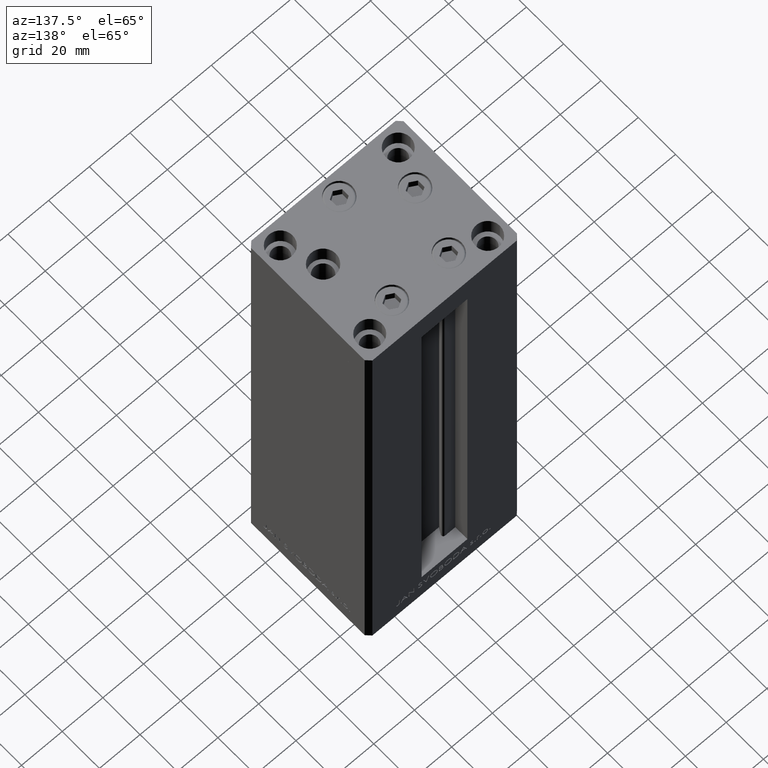
[diagram: clean part render]
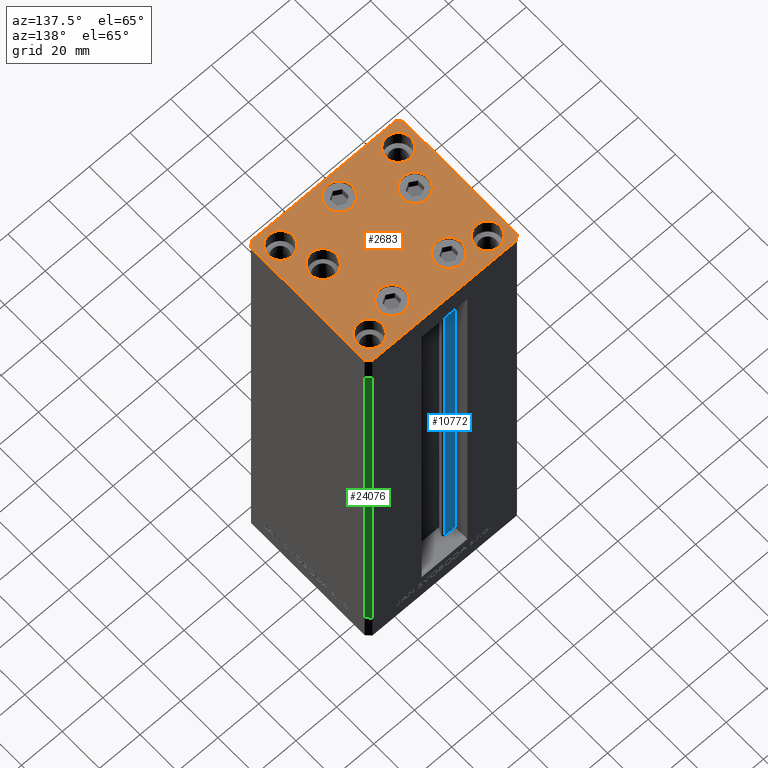
[diagram: same view with three faces highlighted in distinct colors, each labeled with its STEP entity id]
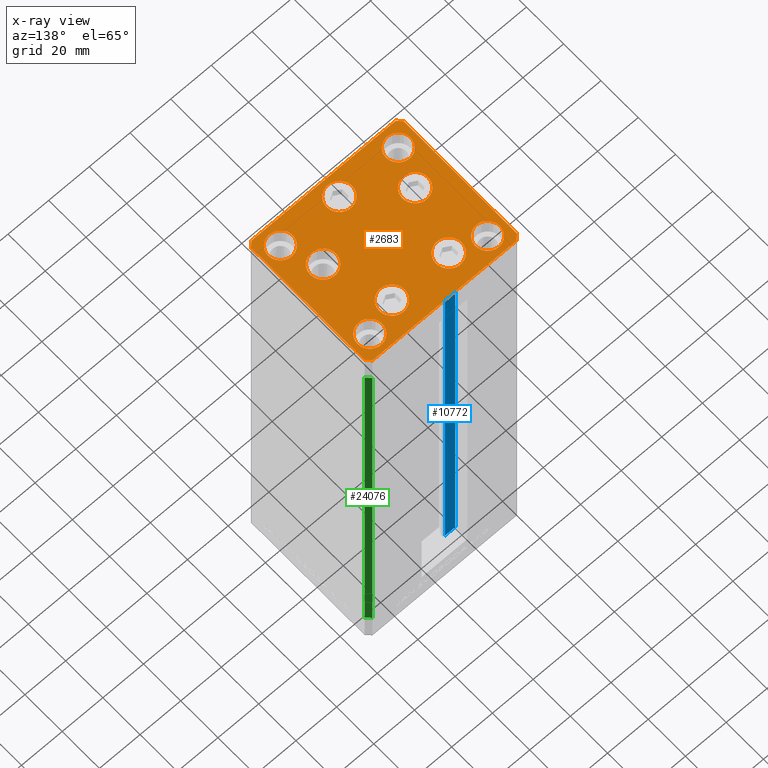
[diagram: x-ray of the same camera — body ghosted, the three highlighted faces saturated]
A machine part, auxiliary view with three faces highlighted in distinct colors.
The next image is the same camera in x-ray (body ghosted, the three faces saturated) — at least one of them is partly hidden behind the body in this view.
Their STEP definitions:

[orange] entity #2683 — the highlighted planar face has unit normal (0, 0, 1).
#607 = DIRECTION ( 'NONE',  ( -1.000000000000000000, -1.954618001100629052E-16, 0.000000000000000000 ) ) ;
#750 = ORIENTED_EDGE ( 'NONE', *, *, #7048, .F. ) ;
#1322 = AXIS2_PLACEMENT_3D ( 'NONE', #6666, #2460, #29663 ) ;
#1411 = LINE ( 'NONE', #5377, #22846 ) ;
#1562 = LINE ( 'NONE', #31986, #4881 ) ;
#1857 = EDGE_CURVE ( 'NONE', #1968, #15052, #44227, .T. ) ;
#1968 = VERTEX_POINT ( 'NONE', #22663 ) ;
#2145 = CARTESIAN_POINT ( 'NONE',  ( 37.49999999999992184, 30.50000000000001066, 0.000000000000000000 ) ) ;
#2246 = AXIS2_PLACEMENT_3D ( 'NONE', #43016, #5640, #2413 ) ;
#2306 = ORIENTED_EDGE ( 'NONE', *, *, #32902, .T. ) ;
#2413 = DIRECTION ( 'NONE',  ( 1.000000000000000000, 0.000000000000000000, 0.000000000000000000 ) ) ;
#2460 = DIRECTION ( 'NONE',  ( -0.000000000000000000, 0.000000000000000000, 1.000000000000000000 ) ) ;
#2468 = CARTESIAN_POINT ( 'NONE',  ( -35.49999999999998579, -32.50000000000001421, 0.000000000000000000 ) ) ;
#2683 = ADVANCED_FACE ( 'NONE', ( #29914, #29429, #33139, #37114, #40576, #41061, #18295, #37358, #18535, #10866 ), #45010, .T. ) ;
#3145 = EDGE_LOOP ( 'NONE', ( #5150, #37892 ) ) ;
#3206 = AXIS2_PLACEMENT_3D ( 'NONE', #9161, #46061, #16125 ) ;
#3431 = EDGE_CURVE ( 'NONE', #40720, #43264, #17968, .T. ) ;
#3492 = DIRECTION ( 'NONE',  ( 0.000000000000000000, -0.000000000000000000, -1.000000000000000000 ) ) ;
#3612 = CIRCLE ( 'NONE', #8401, 6.250000000000001776 ) ;
#3878 = VERTEX_POINT ( 'NONE', #35546 ) ;
#4555 = DIRECTION ( 'NONE',  ( 1.000000000000000000, 0.000000000000000000, 0.000000000000000000 ) ) ;
#4750 = CARTESIAN_POINT ( 'NONE',  ( -23.00000000000001421, -23.99999999999999289, 0.000000000000000000 ) ) ;
#4817 = CARTESIAN_POINT ( 'NONE',  ( 35.49999999999992184, 32.50000000000000711, 0.000000000000000000 ) ) ;
#4821 = VERTEX_POINT ( 'NONE', #11078 ) ;
#4881 = VECTOR ( 'NONE', #20866, 1000.000000000000000 ) ;
#4950 = AXIS2_PLACEMENT_3D ( 'NONE', #22652, #37768, #34041 ) ;
#5042 = ORIENTED_EDGE ( 'NONE', *, *, #30024, .T. ) ;
#5150 = ORIENTED_EDGE ( 'NONE', *, *, #48532, .T. ) ;
#5338 = CIRCLE ( 'NONE', #43267, 6.250000000000000000 ) ;
#5377 = CARTESIAN_POINT ( 'NONE',  ( 37.50000000000001421, -30.50000000000000711, 0.000000000000000000 ) ) ;
#5415 = CIRCLE ( 'NONE', #45683, 6.000000000000005329 ) ;
#5473 = AXIS2_PLACEMENT_3D ( 'NONE', #40790, #41038, #22461 ) ;
#5491 = DIRECTION ( 'NONE',  ( 0.7071067811865487940, 0.7071067811865463515, 0.000000000000000000 ) ) ;
#5503 = ORIENTED_EDGE ( 'NONE', *, *, #28337, .T. ) ;
#5640 = DIRECTION ( 'NONE',  ( 0.000000000000000000, 0.000000000000000000, 1.000000000000000000 ) ) ;
#5866 = VERTEX_POINT ( 'NONE', #47101 ) ;
#6092 = CARTESIAN_POINT ( 'NONE',  ( 35.50000000000000711, -32.50000000000000711, 0.000000000000000000 ) ) ;
#6103 = VECTOR ( 'NONE', #607, 1000.000000000000000 ) ;
#6442 = ORIENTED_EDGE ( 'NONE', *, *, #1857, .T. ) ;
#6666 = CARTESIAN_POINT ( 'NONE',  ( 0.000000000000000000, 0.000000000000000000, 0.000000000000000000 ) ) ;
#6745 = VERTEX_POINT ( 'NONE', #14561 ) ;
#7048 = EDGE_CURVE ( 'NONE', #27585, #25874, #41720, .T. ) ;
#7166 = LINE ( 'NONE', #29196, #11525 ) ;
#7169 = CIRCLE ( 'NONE', #45096, 6.000000000000005329 ) ;
#7266 = CIRCLE ( 'NONE', #20690, 5.999999999999998224 ) ;
#7682 = AXIS2_PLACEMENT_3D ( 'NONE', #26505, #34432, #41610 ) ;
#7935 = CARTESIAN_POINT ( 'NONE',  ( -20.24106857963322881, 19.49999999999999645, 0.000000000000000000 ) ) ;
#8073 = EDGE_CURVE ( 'NONE', #29295, #5866, #21232, .T. ) ;
#8298 = EDGE_CURVE ( 'NONE', #43264, #40720, #27564, .T. ) ;
#8323 = ORIENTED_EDGE ( 'NONE', *, *, #46011, .T. ) ;
#8401 = AXIS2_PLACEMENT_3D ( 'NONE', #24372, #13231, #38515 ) ;
#8734 = CIRCLE ( 'NONE', #15047, 6.250000000000000000 ) ;
#9044 = LINE ( 'NONE', #46176, #26565 ) ;
#9161 = CARTESIAN_POINT ( 'NONE',  ( -29.00000000000001066, 24.00000000000000711, 0.000000000000000000 ) ) ;
#9368 = ORIENTED_EDGE ( 'NONE', *, *, #31664, .T. ) ;
#9500 = AXIS2_PLACEMENT_3D ( 'NONE', #19381, #34478, #42402 ) ;
#9510 = EDGE_LOOP ( 'NONE', ( #47626, #24443 ) ) ;
#9604 = VERTEX_POINT ( 'NONE', #34887 ) ;
#10269 = CARTESIAN_POINT ( 'NONE',  ( 23.00000000000001066, -23.99999999999999289, 0.000000000000000000 ) ) ;
#10866 = FACE_OUTER_BOUND ( 'NONE', #38299, .T. ) ;
#11078 = CARTESIAN_POINT ( 'NONE',  ( -6.249999999999997335, -24.00000000000000000, 0.000000000000000000 ) ) ;
#11225 = VERTEX_POINT ( 'NONE', #6092 ) ;
#11243 = DIRECTION ( 'NONE',  ( 0.000000000000000000, -0.000000000000000000, -1.000000000000000000 ) ) ;
#11272 = AXIS2_PLACEMENT_3D ( 'NONE', #29012, #47569, #33632 ) ;
#11493 = CARTESIAN_POINT ( 'NONE',  ( -7.741068579633227031, 19.49999999999999645, 0.000000000000000000 ) ) ;
#11525 = VECTOR ( 'NONE', #45271, 1000.000000000000114 ) ;
#11571 = ORIENTED_EDGE ( 'NONE', *, *, #18440, .T. ) ;
#12062 = VERTEX_POINT ( 'NONE', #44513 ) ;
#12742 = EDGE_LOOP ( 'NONE', ( #41562, #37221 ) ) ;
#13090 = VERTEX_POINT ( 'NONE', #16411 ) ;
#13231 = DIRECTION ( 'NONE',  ( 0.000000000000000000, -0.000000000000000000, -1.000000000000000000 ) ) ;
#13537 = DIRECTION ( 'NONE',  ( -0.7071067811865482389, 0.7071067811865469066, 0.000000000000000000 ) ) ;
#13870 = EDGE_LOOP ( 'NONE', ( #39001, #34609 ) ) ;
#14376 = EDGE_CURVE ( 'NONE', #6745, #47861, #45888, .T. ) ;
#14425 = EDGE_CURVE ( 'NONE', #9604, #3878, #27496, .T. ) ;
#14477 = EDGE_CURVE ( 'NONE', #20670, #35524, #7169, .T. ) ;
#14561 = CARTESIAN_POINT ( 'NONE',  ( -35.00000000000000711, 24.00000000000000711, 0.000000000000000000 ) ) ;
#14564 = VERTEX_POINT ( 'NONE', #2468 ) ;
#15047 = AXIS2_PLACEMENT_3D ( 'NONE', #18906, #11243, #4555 ) ;
#15052 = VERTEX_POINT ( 'NONE', #21413 ) ;
#15339 = ORIENTED_EDGE ( 'NONE', *, *, #34476, .T. ) ;
#15463 = VECTOR ( 'NONE', #5491, 1000.000000000000000 ) ;
#15699 = AXIS2_PLACEMENT_3D ( 'NONE', #16015, #31097, #46191 ) ;
#16015 = CARTESIAN_POINT ( 'NONE',  ( -13.99106857963322703, 19.49999999999999645, 0.000000000000000000 ) ) ;
#16125 = DIRECTION ( 'NONE',  ( 1.000000000000000000, 0.000000000000000000, 0.000000000000000000 ) ) ;
#16374 = EDGE_CURVE ( 'NONE', #16566, #9604, #1562, .T. ) ;
#16411 = CARTESIAN_POINT ( 'NONE',  ( 37.50000000000001421, -30.50000000000000711, 0.000000000000000000 ) ) ;
#16566 = VERTEX_POINT ( 'NONE', #45085 ) ;
#16571 = CIRCLE ( 'NONE', #5473, 6.250000000000001776 ) ;
#17968 = CIRCLE ( 'NONE', #7682, 6.250000000000000000 ) ;
#18151 = CIRCLE ( 'NONE', #9500, 5.999999999999998224 ) ;
#18184 = EDGE_CURVE ( 'NONE', #35524, #20670, #34978, .T. ) ;
#18295 = FACE_BOUND ( 'NONE', #22235, .T. ) ;
#18428 = ORIENTED_EDGE ( 'NONE', *, *, #39405, .F. ) ;
#18440 = EDGE_CURVE ( 'NONE', #21486, #19161, #23134, .T. ) ;
#18535 = FACE_BOUND ( 'NONE', #9510, .T. ) ;
#18906 = CARTESIAN_POINT ( 'NONE',  ( 2.939152317953647500E-15, -24.00000000000000000, 0.000000000000000000 ) ) ;
#19161 = VERTEX_POINT ( 'NONE', #27617 ) ;
#19381 = CARTESIAN_POINT ( 'NONE',  ( -29.00000000000001066, 24.00000000000000711, 0.000000000000000000 ) ) ;
#19842 = ORIENTED_EDGE ( 'NONE', *, *, #8073, .F. ) ;
#19991 = DIRECTION ( 'NONE',  ( -1.478780668045802821E-15, 1.000000000000000000, 0.000000000000000000 ) ) ;
#20183 = DIRECTION ( 'NONE',  ( 1.000000000000000000, 9.773090005503140331E-17, 0.000000000000000000 ) ) ;
#20210 = CARTESIAN_POINT ( 'NONE',  ( -22.62741699796951877, -8.000000000000005329, 0.000000000000000000 ) ) ;
#20340 = LINE ( 'NONE', #20584, #15463 ) ;
#20584 = CARTESIAN_POINT ( 'NONE',  ( 35.50000000000000711, -32.50000000000000711, 0.000000000000000000 ) ) ;
#20670 = VERTEX_POINT ( 'NONE', #27976 ) ;
#20690 = AXIS2_PLACEMENT_3D ( 'NONE', #33151, #37127, #32897 ) ;
#20693 = VERTEX_POINT ( 'NONE', #38897 ) ;
#20796 = EDGE_CURVE ( 'NONE', #25874, #27585, #7266, .T. ) ;
#20812 = ORIENTED_EDGE ( 'NONE', *, *, #44021, .T. ) ;
#20866 = DIRECTION ( 'NONE',  ( -0.7071067811865426878, -0.7071067811865524577, 0.000000000000000000 ) ) ;
#21152 = VECTOR ( 'NONE', #13537, 999.9999999999998863 ) ;
#21232 = CIRCLE ( 'NONE', #2246, 6.000000000000005329 ) ;
#21413 = CARTESIAN_POINT ( 'NONE',  ( 35.49999999999992184, 32.50000000000000711, 0.000000000000000000 ) ) ;
#21486 = VERTEX_POINT ( 'NONE', #40686 ) ;
#21551 = DIRECTION ( 'NONE',  ( 0.000000000000000000, 0.000000000000000000, 1.000000000000000000 ) ) ;
#21669 = CARTESIAN_POINT ( 'NONE',  ( -28.87741699796952233, -8.000000000000005329, 0.000000000000000000 ) ) ;
#21939 = CIRCLE ( 'NONE', #29848, 6.250000000000000000 ) ;
#22235 = EDGE_LOOP ( 'NONE', ( #750, #32029 ) ) ;
#22373 = ORIENTED_EDGE ( 'NONE', *, *, #16374, .T. ) ;
#22461 = DIRECTION ( 'NONE',  ( 1.000000000000000000, 0.000000000000000000, 0.000000000000000000 ) ) ;
#22646 = CARTESIAN_POINT ( 'NONE',  ( 23.00000000000001066, 24.00000000000000711, 0.000000000000000000 ) ) ;
#22652 = CARTESIAN_POINT ( 'NONE',  ( 13.99106857963322348, 19.50000000000000000, 0.000000000000000000 ) ) ;
#22663 = CARTESIAN_POINT ( 'NONE',  ( 37.49999999999992184, 30.50000000000001066, 0.000000000000000000 ) ) ;
#22846 = VECTOR ( 'NONE', #19991, 1000.000000000000000 ) ;
#23134 = CIRCLE ( 'NONE', #4950, 6.250000000000000000 ) ;
#23246 = CARTESIAN_POINT ( 'NONE',  ( 2.939152317953647500E-15, -24.00000000000000000, 0.000000000000000000 ) ) ;
#23820 = CARTESIAN_POINT ( 'NONE',  ( -29.00000000000001066, -23.99999999999999289, 0.000000000000000000 ) ) ;
#24372 = CARTESIAN_POINT ( 'NONE',  ( 22.62741699796951877, -8.000000000000000000, 0.000000000000000000 ) ) ;
#24443 = ORIENTED_EDGE ( 'NONE', *, *, #18184, .F. ) ;
#25082 = VERTEX_POINT ( 'NONE', #21669 ) ;
#25874 = VERTEX_POINT ( 'NONE', #28853 ) ;
#26505 = CARTESIAN_POINT ( 'NONE',  ( -13.99106857963322703, 19.49999999999999645, 0.000000000000000000 ) ) ;
#26565 = VECTOR ( 'NONE', #20183, 1000.000000000000000 ) ;
#26742 = ORIENTED_EDGE ( 'NONE', *, *, #40674, .T. ) ;
#27496 = LINE ( 'NONE', #38892, #38804 ) ;
#27564 = CIRCLE ( 'NONE', #15699, 6.250000000000000000 ) ;
#27585 = VERTEX_POINT ( 'NONE', #4750 ) ;
#27617 = CARTESIAN_POINT ( 'NONE',  ( 7.741068579633223479, 19.50000000000000000, 0.000000000000000000 ) ) ;
#27971 = DIRECTION ( 'NONE',  ( 4.550094363217855288E-16, -1.000000000000000000, 0.000000000000000000 ) ) ;
#27976 = CARTESIAN_POINT ( 'NONE',  ( 35.00000000000001421, 24.00000000000000711, 0.000000000000000000 ) ) ;
#28337 = EDGE_CURVE ( 'NONE', #25082, #20693, #39898, .T. ) ;
#28796 = CARTESIAN_POINT ( 'NONE',  ( -23.00000000000001421, 24.00000000000000711, 0.000000000000000000 ) ) ;
#28853 = CARTESIAN_POINT ( 'NONE',  ( -35.00000000000000711, -23.99999999999999289, 0.000000000000000000 ) ) ;
#29012 = CARTESIAN_POINT ( 'NONE',  ( 29.00000000000001066, 24.00000000000000711, 0.000000000000000000 ) ) ;
#29071 = AXIS2_PLACEMENT_3D ( 'NONE', #23820, #42390, #38433 ) ;
#29196 = CARTESIAN_POINT ( 'NONE',  ( -37.49999999999998579, -30.50000000000001421, 0.000000000000000000 ) ) ;
#29295 = VERTEX_POINT ( 'NONE', #10269 ) ;
#29429 = FACE_BOUND ( 'NONE', #31263, .T. ) ;
#29663 = DIRECTION ( 'NONE',  ( 1.000000000000000000, 0.000000000000000000, 0.000000000000000000 ) ) ;
#29848 = AXIS2_PLACEMENT_3D ( 'NONE', #23246, #40650, #45766 ) ;
#29914 = FACE_BOUND ( 'NONE', #13870, .T. ) ;
#30024 = EDGE_CURVE ( 'NONE', #11225, #13090, #20340, .T. ) ;
#31097 = DIRECTION ( 'NONE',  ( 0.000000000000000000, -0.000000000000000000, -1.000000000000000000 ) ) ;
#31263 = EDGE_LOOP ( 'NONE', ( #45093, #11571 ) ) ;
#31664 = EDGE_CURVE ( 'NONE', #46650, #12062, #3612, .T. ) ;
#31950 = DIRECTION ( 'NONE',  ( 0.000000000000000000, -0.000000000000000000, -1.000000000000000000 ) ) ;
#31986 = CARTESIAN_POINT ( 'NONE',  ( -35.50000000000002842, 32.49999999999999289, 0.000000000000000000 ) ) ;
#32029 = ORIENTED_EDGE ( 'NONE', *, *, #20796, .F. ) ;
#32153 = DIRECTION ( 'NONE',  ( 1.000000000000000000, 0.000000000000000000, 0.000000000000000000 ) ) ;
#32404 = DIRECTION ( 'NONE',  ( 0.000000000000000000, 0.000000000000000000, 1.000000000000000000 ) ) ;
#32897 = DIRECTION ( 'NONE',  ( 1.000000000000000000, 0.000000000000000000, 0.000000000000000000 ) ) ;
#32902 = EDGE_CURVE ( 'NONE', #14564, #11225, #9044, .T. ) ;
#33139 = FACE_BOUND ( 'NONE', #40048, .T. ) ;
#33151 = CARTESIAN_POINT ( 'NONE',  ( -29.00000000000001066, -23.99999999999999289, 0.000000000000000000 ) ) ;
#33193 = CARTESIAN_POINT ( 'NONE',  ( -22.62741699796951877, -8.000000000000005329, 0.000000000000000000 ) ) ;
#33632 = DIRECTION ( 'NONE',  ( 1.000000000000000000, 0.000000000000000000, 0.000000000000000000 ) ) ;
#34041 = DIRECTION ( 'NONE',  ( 1.000000000000000000, 0.000000000000000000, 0.000000000000000000 ) ) ;
#34432 = DIRECTION ( 'NONE',  ( 0.000000000000000000, -0.000000000000000000, -1.000000000000000000 ) ) ;
#34476 = EDGE_CURVE ( 'NONE', #3878, #14564, #7166, .T. ) ;
#34478 = DIRECTION ( 'NONE',  ( 0.000000000000000000, 0.000000000000000000, 1.000000000000000000 ) ) ;
#34609 = ORIENTED_EDGE ( 'NONE', *, *, #3431, .T. ) ;
#34887 = CARTESIAN_POINT ( 'NONE',  ( -37.50000000000001421, 30.49999999999998579, 0.000000000000000000 ) ) ;
#34978 = CIRCLE ( 'NONE', #11272, 6.000000000000005329 ) ;
#35014 = LINE ( 'NONE', #4817, #6103 ) ;
#35524 = VERTEX_POINT ( 'NONE', #22646 ) ;
#35546 = CARTESIAN_POINT ( 'NONE',  ( -37.49999999999998579, -30.50000000000001421, 0.000000000000000000 ) ) ;
#35890 = EDGE_CURVE ( 'NONE', #19161, #21486, #5338, .T. ) ;
#35912 = DIRECTION ( 'NONE',  ( 1.000000000000000000, 0.000000000000000000, 0.000000000000000000 ) ) ;
#36117 = EDGE_LOOP ( 'NONE', ( #5503, #20812 ) ) ;
#36408 = CARTESIAN_POINT ( 'NONE',  ( 29.00000000000001066, -23.99999999999999289, 0.000000000000000000 ) ) ;
#37114 = FACE_BOUND ( 'NONE', #3145, .T. ) ;
#37127 = DIRECTION ( 'NONE',  ( 0.000000000000000000, 0.000000000000000000, 1.000000000000000000 ) ) ;
#37221 = ORIENTED_EDGE ( 'NONE', *, *, #14376, .F. ) ;
#37358 = FACE_BOUND ( 'NONE', #12742, .T. ) ;
#37768 = DIRECTION ( 'NONE',  ( 0.000000000000000000, -0.000000000000000000, -1.000000000000000000 ) ) ;
#37892 = ORIENTED_EDGE ( 'NONE', *, *, #38388, .T. ) ;
#38299 = EDGE_LOOP ( 'NONE', ( #15339, #2306, #5042, #8323, #6442, #26742, #22373, #48843 ) ) ;
#38388 = EDGE_CURVE ( 'NONE', #48342, #4821, #21939, .T. ) ;
#38433 = DIRECTION ( 'NONE',  ( 1.000000000000000000, 0.000000000000000000, 0.000000000000000000 ) ) ;
#38515 = DIRECTION ( 'NONE',  ( 1.000000000000000000, 0.000000000000000000, 0.000000000000000000 ) ) ;
#38804 = VECTOR ( 'NONE', #27971, 1000.000000000000000 ) ;
#38892 = CARTESIAN_POINT ( 'NONE',  ( -37.50000000000001421, 30.49999999999998579, 0.000000000000000000 ) ) ;
#38897 = CARTESIAN_POINT ( 'NONE',  ( -16.37741699796951877, -8.000000000000005329, 0.000000000000000000 ) ) ;
#39001 = ORIENTED_EDGE ( 'NONE', *, *, #8298, .T. ) ;
#39132 = AXIS2_PLACEMENT_3D ( 'NONE', #20210, #46202, #46442 ) ;
#39405 = EDGE_CURVE ( 'NONE', #5866, #29295, #5415, .T. ) ;
#39707 = EDGE_LOOP ( 'NONE', ( #18428, #19842 ) ) ;
#39898 = CIRCLE ( 'NONE', #39132, 6.250000000000001776 ) ;
#40048 = EDGE_LOOP ( 'NONE', ( #9368, #44878 ) ) ;
#40576 = FACE_BOUND ( 'NONE', #36117, .T. ) ;
#40650 = DIRECTION ( 'NONE',  ( 0.000000000000000000, -0.000000000000000000, -1.000000000000000000 ) ) ;
#40674 = EDGE_CURVE ( 'NONE', #15052, #16566, #35014, .T. ) ;
#40686 = CARTESIAN_POINT ( 'NONE',  ( 20.24106857963322526, 19.50000000000000000, 0.000000000000000000 ) ) ;
#40720 = VERTEX_POINT ( 'NONE', #11493 ) ;
#40790 = CARTESIAN_POINT ( 'NONE',  ( 22.62741699796951877, -8.000000000000000000, 0.000000000000000000 ) ) ;
#41038 = DIRECTION ( 'NONE',  ( 0.000000000000000000, -0.000000000000000000, -1.000000000000000000 ) ) ;
#41061 = FACE_BOUND ( 'NONE', #39707, .T. ) ;
#41562 = ORIENTED_EDGE ( 'NONE', *, *, #47535, .F. ) ;
#41610 = DIRECTION ( 'NONE',  ( 1.000000000000000000, 0.000000000000000000, 0.000000000000000000 ) ) ;
#41720 = CIRCLE ( 'NONE', #29071, 5.999999999999998224 ) ;
#42390 = DIRECTION ( 'NONE',  ( 0.000000000000000000, 0.000000000000000000, 1.000000000000000000 ) ) ;
#42402 = DIRECTION ( 'NONE',  ( 1.000000000000000000, 0.000000000000000000, 0.000000000000000000 ) ) ;
#43016 = CARTESIAN_POINT ( 'NONE',  ( 29.00000000000001066, -23.99999999999999289, 0.000000000000000000 ) ) ;
#43101 = CARTESIAN_POINT ( 'NONE',  ( 13.99106857963322348, 19.50000000000000000, 0.000000000000000000 ) ) ;
#43264 = VERTEX_POINT ( 'NONE', #7935 ) ;
#43267 = AXIS2_PLACEMENT_3D ( 'NONE', #43101, #31950, #46578 ) ;
#43333 = CIRCLE ( 'NONE', #48065, 6.250000000000001776 ) ;
#44021 = EDGE_CURVE ( 'NONE', #20693, #25082, #43333, .T. ) ;
#44101 = DIRECTION ( 'NONE',  ( 1.000000000000000000, 0.000000000000000000, 0.000000000000000000 ) ) ;
#44227 = LINE ( 'NONE', #2145, #21152 ) ;
#44293 = CARTESIAN_POINT ( 'NONE',  ( 29.00000000000001066, 24.00000000000000711, 0.000000000000000000 ) ) ;
#44513 = CARTESIAN_POINT ( 'NONE',  ( 28.87741699796952233, -8.000000000000000000, 0.000000000000000000 ) ) ;
#44878 = ORIENTED_EDGE ( 'NONE', *, *, #45884, .T. ) ;
#45010 = PLANE ( 'NONE',  #1322 ) ;
#45085 = CARTESIAN_POINT ( 'NONE',  ( -35.50000000000002842, 32.49999999999999289, 0.000000000000000000 ) ) ;
#45093 = ORIENTED_EDGE ( 'NONE', *, *, #35890, .T. ) ;
#45096 = AXIS2_PLACEMENT_3D ( 'NONE', #44293, #32404, #32153 ) ;
#45271 = DIRECTION ( 'NONE',  ( 0.7071067811865474617, -0.7071067811865474617, 0.000000000000000000 ) ) ;
#45683 = AXIS2_PLACEMENT_3D ( 'NONE', #36408, #21551, #35912 ) ;
#45766 = DIRECTION ( 'NONE',  ( 1.000000000000000000, 0.000000000000000000, 0.000000000000000000 ) ) ;
#45884 = EDGE_CURVE ( 'NONE', #12062, #46650, #16571, .T. ) ;
#45888 = CIRCLE ( 'NONE', #3206, 5.999999999999998224 ) ;
#46011 = EDGE_CURVE ( 'NONE', #13090, #1968, #1411, .T. ) ;
#46061 = DIRECTION ( 'NONE',  ( 0.000000000000000000, 0.000000000000000000, 1.000000000000000000 ) ) ;
#46176 = CARTESIAN_POINT ( 'NONE',  ( -35.49999999999998579, -32.50000000000001421, 0.000000000000000000 ) ) ;
#46191 = DIRECTION ( 'NONE',  ( 1.000000000000000000, 0.000000000000000000, 0.000000000000000000 ) ) ;
#46202 = DIRECTION ( 'NONE',  ( 0.000000000000000000, -0.000000000000000000, -1.000000000000000000 ) ) ;
#46281 = CARTESIAN_POINT ( 'NONE',  ( 16.37741699796951877, -8.000000000000000000, 0.000000000000000000 ) ) ;
#46442 = DIRECTION ( 'NONE',  ( 1.000000000000000000, 0.000000000000000000, 0.000000000000000000 ) ) ;
#46578 = DIRECTION ( 'NONE',  ( 1.000000000000000000, 0.000000000000000000, 0.000000000000000000 ) ) ;
#46650 = VERTEX_POINT ( 'NONE', #46281 ) ;
#47101 = CARTESIAN_POINT ( 'NONE',  ( 35.00000000000001421, -23.99999999999999289, 0.000000000000000000 ) ) ;
#47535 = EDGE_CURVE ( 'NONE', #47861, #6745, #18151, .T. ) ;
#47569 = DIRECTION ( 'NONE',  ( 0.000000000000000000, 0.000000000000000000, 1.000000000000000000 ) ) ;
#47626 = ORIENTED_EDGE ( 'NONE', *, *, #14477, .F. ) ;
#47861 = VERTEX_POINT ( 'NONE', #28796 ) ;
#48065 = AXIS2_PLACEMENT_3D ( 'NONE', #33193, #3492, #44101 ) ;
#48342 = VERTEX_POINT ( 'NONE', #48357 ) ;
#48357 = CARTESIAN_POINT ( 'NONE',  ( 6.250000000000002665, -24.00000000000000000, 0.000000000000000000 ) ) ;
#48532 = EDGE_CURVE ( 'NONE', #4821, #48342, #8734, .T. ) ;
#48843 = ORIENTED_EDGE ( 'NONE', *, *, #14425, .T. ) ;

[blue] entity #10772 — the highlighted planar face has unit normal (0, -1, 0).
#563 = CARTESIAN_POINT ( 'NONE',  ( -6.183333333334001480, 25.99999999999999289, 0.000000000000000000 ) ) ;
#806 = DIRECTION ( 'NONE',  ( 0.000000000000000000, -1.000000000000000000, -0.000000000000000000 ) ) ;
#5018 = FACE_OUTER_BOUND ( 'NONE', #45867, .T. ) ;
#5082 = CARTESIAN_POINT ( 'NONE',  ( -11.25000000000000178, 25.99999999999999289, 0.000000000000000000 ) ) ;
#6074 = DIRECTION ( 'NONE',  ( -0.000000000000000000, -0.000000000000000000, 1.000000000000000000 ) ) ;
#6282 = AXIS2_PLACEMENT_3D ( 'NONE', #8483, #806, #45593 ) ;
#6576 = CARTESIAN_POINT ( 'NONE',  ( -11.25000000000000178, 25.99999999999999289, 0.000000000000000000 ) ) ;
#7001 = EDGE_CURVE ( 'NONE', #31677, #31572, #34463, .T. ) ;
#8483 = CARTESIAN_POINT ( 'NONE',  ( -6.183333333334001480, 25.99999999999999289, 0.000000000000000000 ) ) ;
#8810 = CARTESIAN_POINT ( 'NONE',  ( -6.183333333334001480, 25.99999999999999289, 0.000000000000000000 ) ) ;
#10510 = VERTEX_POINT ( 'NONE', #5082 ) ;
#10556 = CARTESIAN_POINT ( 'NONE',  ( -6.183333333334001480, 25.99999999999999289, 206.0000000000000000 ) ) ;
#10754 = VECTOR ( 'NONE', #38502, 1000.000000000000000 ) ;
#10772 = ADVANCED_FACE ( 'NONE', ( #5018 ), #38930, .F. ) ;
#12589 = ORIENTED_EDGE ( 'NONE', *, *, #28554, .T. ) ;
#12954 = ORIENTED_EDGE ( 'NONE', *, *, #7001, .F. ) ;
#14576 = CARTESIAN_POINT ( 'NONE',  ( -11.25000000000000178, 25.99999999999999289, 206.0000000000000000 ) ) ;
#21748 = VERTEX_POINT ( 'NONE', #14576 ) ;
#22741 = VECTOR ( 'NONE', #41898, 1000.000000000000000 ) ;
#26139 = EDGE_CURVE ( 'NONE', #31572, #21748, #43889, .T. ) ;
#28541 = CARTESIAN_POINT ( 'NONE',  ( 0.000000000000000000, 25.99999999999999289, 206.0000000000000000 ) ) ;
#28554 = EDGE_CURVE ( 'NONE', #10510, #21748, #40242, .T. ) ;
#28770 = VECTOR ( 'NONE', #44138, 1000.000000000000000 ) ;
#29639 = VECTOR ( 'NONE', #6074, 1000.000000000000000 ) ;
#30853 = EDGE_CURVE ( 'NONE', #10510, #31677, #45916, .T. ) ;
#31312 = CARTESIAN_POINT ( 'NONE',  ( -6.183333333334001480, 25.99999999999999289, 0.000000000000000000 ) ) ;
#31572 = VERTEX_POINT ( 'NONE', #10556 ) ;
#31677 = VERTEX_POINT ( 'NONE', #8810 ) ;
#31877 = ORIENTED_EDGE ( 'NONE', *, *, #30853, .F. ) ;
#33509 = ORIENTED_EDGE ( 'NONE', *, *, #26139, .F. ) ;
#34463 = LINE ( 'NONE', #563, #22741 ) ;
#38502 = DIRECTION ( 'NONE',  ( 1.000000000000000000, -0.000000000000000000, -0.000000000000000000 ) ) ;
#38930 = PLANE ( 'NONE',  #6282 ) ;
#40242 = LINE ( 'NONE', #6576, #29639 ) ;
#41898 = DIRECTION ( 'NONE',  ( -0.000000000000000000, -0.000000000000000000, 1.000000000000000000 ) ) ;
#43889 = LINE ( 'NONE', #28541, #28770 ) ;
#44138 = DIRECTION ( 'NONE',  ( -1.000000000000000000, 0.000000000000000000, 0.000000000000000000 ) ) ;
#45593 = DIRECTION ( 'NONE',  ( 0.000000000000000000, 0.000000000000000000, -1.000000000000000000 ) ) ;
#45867 = EDGE_LOOP ( 'NONE', ( #12954, #31877, #12589, #33509 ) ) ;
#45916 = LINE ( 'NONE', #31312, #10754 ) ;

[green] entity #24076 — the highlighted planar face has unit normal (0.7071, 0.7071, 0).
#1059 = CARTESIAN_POINT ( 'NONE',  ( 35.50000000000000000, 32.49999999999999289, 206.0000000000000000 ) ) ;
#1171 = LINE ( 'NONE', #23443, #36142 ) ;
#2846 = PLANE ( 'NONE',  #38230 ) ;
#2914 = ORIENTED_EDGE ( 'NONE', *, *, #36506, .T. ) ;
#3564 = EDGE_LOOP ( 'NONE', ( #46542, #22954, #25179, #2914 ) ) ;
#5678 = LINE ( 'NONE', #20774, #19207 ) ;
#6070 = CARTESIAN_POINT ( 'NONE',  ( 35.50000000000000000, 32.49999999999999289, 206.0000000000000000 ) ) ;
#7028 = CARTESIAN_POINT ( 'NONE',  ( 35.50000000000000000, 32.49999999999999289, 206.0000000000000000 ) ) ;
#7662 = CARTESIAN_POINT ( 'NONE',  ( 37.50000000000000711, 30.50000000000000000, 0.000000000000000000 ) ) ;
#18695 = CARTESIAN_POINT ( 'NONE',  ( 37.50000000000000711, 30.50000000000000000, 206.0000000000000000 ) ) ;
#19207 = VECTOR ( 'NONE', #42327, 1000.000000000000114 ) ;
#20774 = CARTESIAN_POINT ( 'NONE',  ( 35.50000000000000000, 32.49999999999999289, 0.000000000000000000 ) ) ;
#21420 = FACE_OUTER_BOUND ( 'NONE', #3564, .T. ) ;
#22954 = ORIENTED_EDGE ( 'NONE', *, *, #34311, .F. ) ;
#23384 = EDGE_CURVE ( 'NONE', #33992, #38506, #5678, .T. ) ;
#23443 = CARTESIAN_POINT ( 'NONE',  ( 37.50000000000000711, 30.50000000000000000, 206.0000000000000000 ) ) ;
#24076 = ADVANCED_FACE ( 'NONE', ( #21420 ), #2846, .T. ) ;
#24418 = DIRECTION ( 'NONE',  ( -0.000000000000000000, -0.000000000000000000, -1.000000000000000000 ) ) ;
#24985 = LINE ( 'NONE', #27973, #36011 ) ;
#25179 = ORIENTED_EDGE ( 'NONE', *, *, #31864, .T. ) ;
#26548 = LINE ( 'NONE', #7028, #39236 ) ;
#27973 = CARTESIAN_POINT ( 'NONE',  ( 35.50000000000000000, 32.49999999999999289, 206.0000000000000000 ) ) ;
#30774 = VERTEX_POINT ( 'NONE', #18695 ) ;
#31864 = EDGE_CURVE ( 'NONE', #32193, #30774, #26548, .T. ) ;
#32047 = DIRECTION ( 'NONE',  ( -0.7071067811865499042, 0.7071067811865451302, 0.000000000000000000 ) ) ;
#32193 = VERTEX_POINT ( 'NONE', #1059 ) ;
#32406 = DIRECTION ( 'NONE',  ( -0.000000000000000000, -0.000000000000000000, -1.000000000000000000 ) ) ;
#33992 = VERTEX_POINT ( 'NONE', #36442 ) ;
#34311 = EDGE_CURVE ( 'NONE', #32193, #33992, #24985, .T. ) ;
#36011 = VECTOR ( 'NONE', #32406, 1000.000000000000000 ) ;
#36142 = VECTOR ( 'NONE', #24418, 1000.000000000000000 ) ;
#36442 = CARTESIAN_POINT ( 'NONE',  ( 35.50000000000000000, 32.49999999999999289, 0.000000000000000000 ) ) ;
#36506 = EDGE_CURVE ( 'NONE', #30774, #38506, #1171, .T. ) ;
#38230 = AXIS2_PLACEMENT_3D ( 'NONE', #6070, #43696, #32047 ) ;
#38506 = VERTEX_POINT ( 'NONE', #7662 ) ;
#39236 = VECTOR ( 'NONE', #45614, 1000.000000000000114 ) ;
#42327 = DIRECTION ( 'NONE',  ( 0.7071067811865500152, -0.7071067811865451302, 0.000000000000000000 ) ) ;
#43696 = DIRECTION ( 'NONE',  ( 0.7071067811865451302, 0.7071067811865499042, -0.000000000000000000 ) ) ;
#45614 = DIRECTION ( 'NONE',  ( 0.7071067811865500152, -0.7071067811865451302, 0.000000000000000000 ) ) ;
#46542 = ORIENTED_EDGE ( 'NONE', *, *, #23384, .F. ) ;